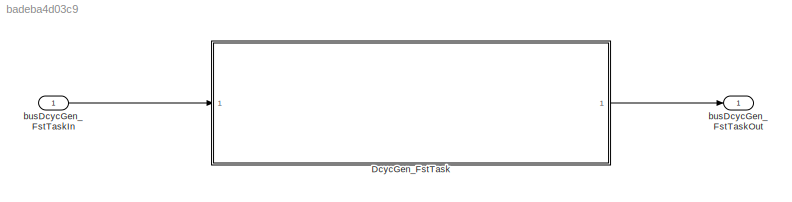
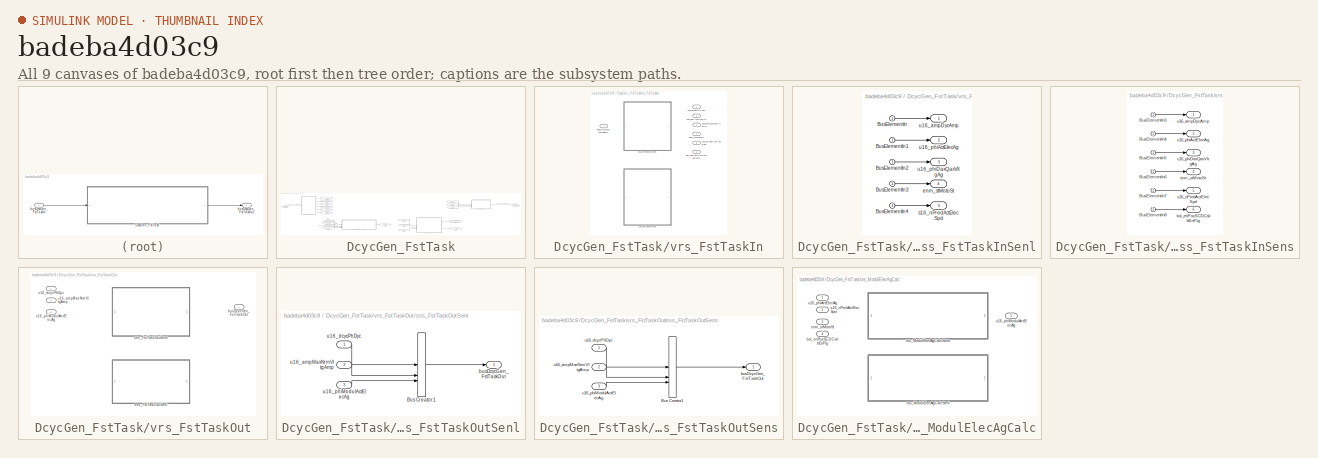
[diagram: thumbnail index - all 9 canvases of the model, root first then tree order]
MODEL slx_badeba4d03c9
KIND model
CONFIG AbsTol = auto
CONFIG EnableMultiTasking = on
CONFIG FixedStep = 0.0005
CONFIG MaxStep = auto
CONFIG MinStep = auto
CONFIG RelTol = 1e-3
CONFIG SampleTimeConstraint = Unconstrained
CONFIG SolverName = FixedStepAuto
CONFIG StartTime = 0.0
CONFIG StopTime = 5
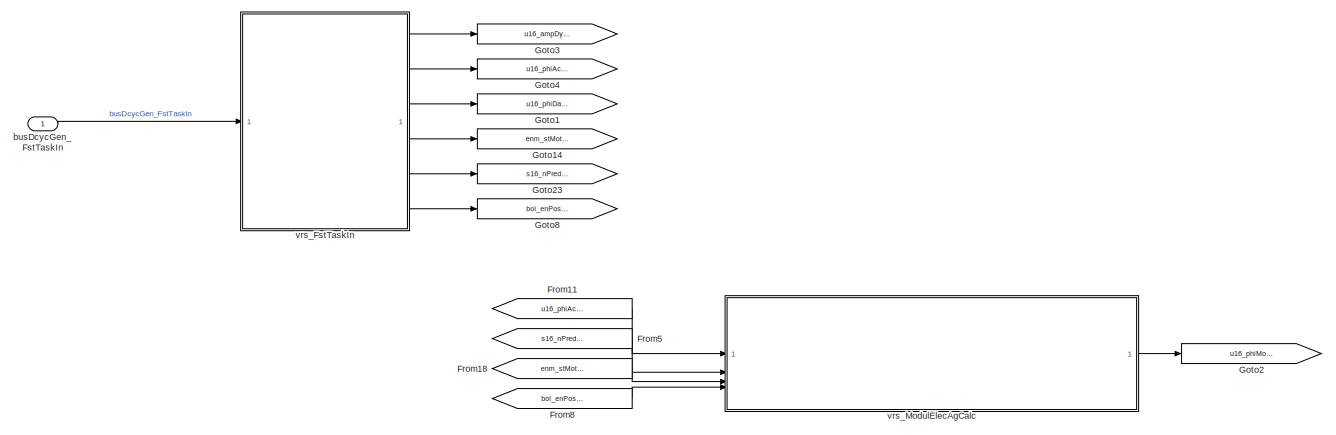
[diagram: DcycGen_FstTask - part 1/2, left side, full height]
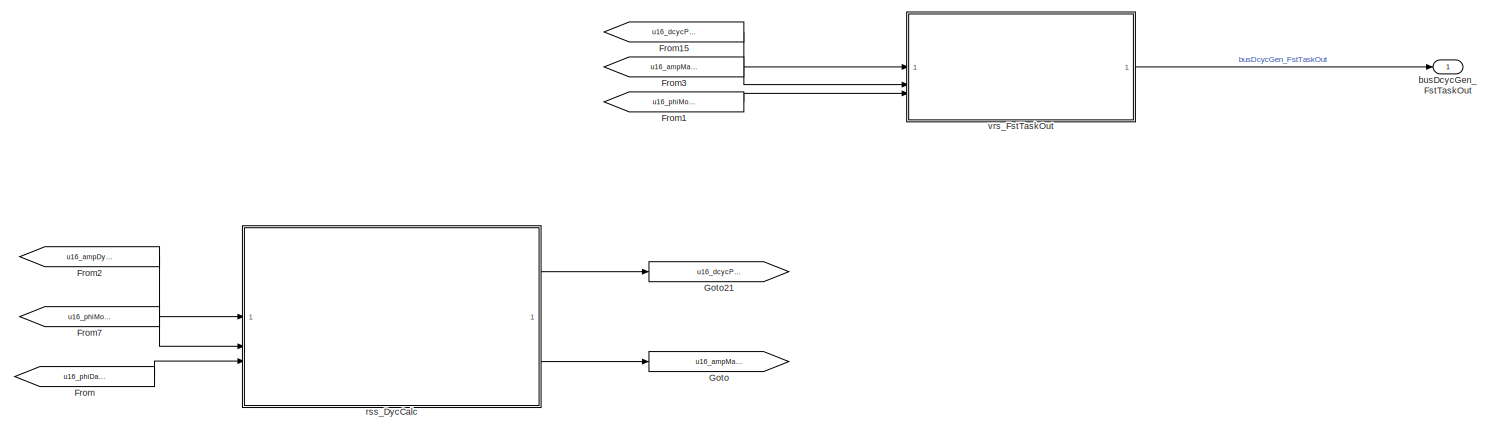
[diagram: DcycGen_FstTask - part 2/2, right side, full height]
BLOCK [SubSystem] DcycGen_FstTask
  RTWFcnName = DcycGen_FstTask
  RTWFcnNameOpts = User specified
  RTWSystemCode = Nonreusable function
  TreatAsAtomicUnit = on
BLOCK [From] DcycGen_FstTask/From
  GotoTag = u16_phiDaxQaxVltgAg
BLOCK [From] DcycGen_FstTask/From1
  GotoTag = u16_phiModulActElecAg
BLOCK [From] DcycGen_FstTask/From11
  GotoTag = u16_phiActElecAg
BLOCK [From] DcycGen_FstTask/From15
  GotoTag = u16_dcycPhDyc
BLOCK [From] DcycGen_FstTask/From18
  GotoTag = enm_stMotoSt
BLOCK [From] DcycGen_FstTask/From2
  GotoTag = u16_ampDycAmp
BLOCK [From] DcycGen_FstTask/From3
  GotoTag = u16_ampMaxNrmVltgAmp
BLOCK [From] DcycGen_FstTask/From5
  GotoTag = s16_nPredActElecSpd
BLOCK [From] DcycGen_FstTask/From7
  GotoTag = u16_phiModulActElecAg
BLOCK [From] DcycGen_FstTask/From8
  GotoTag = bol_enPosSCDCalibEnFlg
BLOCK [Goto] DcycGen_FstTask/Goto
  GotoTag = u16_ampMaxNrmVltgAmp
BLOCK [Goto] DcycGen_FstTask/Goto1
  GotoTag = u16_phiDaxQaxVltgAg
BLOCK [Goto] DcycGen_FstTask/Goto14
  GotoTag = enm_stMotoSt
BLOCK [Goto] DcycGen_FstTask/Goto2
  GotoTag = u16_phiModulActElecAg
BLOCK [Goto] DcycGen_FstTask/Goto21
  GotoTag = u16_dcycPhDyc
BLOCK [Goto] DcycGen_FstTask/Goto23
  GotoTag = s16_nPredActElecSpd
BLOCK [Goto] DcycGen_FstTask/Goto3
  GotoTag = u16_ampDycAmp
BLOCK [Goto] DcycGen_FstTask/Goto4
  GotoTag = u16_phiActElecAg
BLOCK [Goto] DcycGen_FstTask/Goto8
  GotoTag = bol_enPosSCDCalibEnFlg
BLOCK [Inport] DcycGen_FstTask/busDcycGen_FstTaskIn
BLOCK [Outport] DcycGen_FstTask/busDcycGen_FstTaskOut
  SamplingMode = Sample based
  SignalType = real
BLOCK [SubSystem] DcycGen_FstTask/rss_DycCalc
  ReferencedSubsystem = rss_DycCalc
BLOCK [SubSystem] DcycGen_FstTask/vrs_FstTaskIn
  LabelModeActiveChoice = cstSensCtrlLbl
  Variant = on
  VariantControl = Choice
  VariantControlMode = label
BLOCK [Outport] DcycGen_FstTask/vrs_FstTaskIn/bol_enPosSCDCalibEnFlg
  Port = 6
BLOCK [Inport] DcycGen_FstTask/vrs_FstTaskIn/busDcycGen_FstTaskIn
BLOCK [Outport] DcycGen_FstTask/vrs_FstTaskIn/enm_stMotoSt
  Port = 4
BLOCK [Outport] DcycGen_FstTask/vrs_FstTaskIn/s16_nPredActElecSpd
  Port = 5
BLOCK [SubSystem] DcycGen_FstTask/vrs_FstTaskIn/sss_FstTaskInSenl
  VariantControl = cstSenlCtrlLbl
BLOCK [Inport] DcycGen_FstTask/vrs_FstTaskIn/sss_FstTaskInSenl/BusElementIn
BLOCK [Inport] DcycGen_FstTask/vrs_FstTaskIn/sss_FstTaskInSenl/BusElementIn1
BLOCK [Inport] DcycGen_FstTask/vrs_FstTaskIn/sss_FstTaskInSenl/BusElementIn2
BLOCK [Inport] DcycGen_FstTask/vrs_FstTaskIn/sss_FstTaskInSenl/BusElementIn3
BLOCK [Inport] DcycGen_FstTask/vrs_FstTaskIn/sss_FstTaskInSenl/BusElementIn4
BLOCK [Outport] DcycGen_FstTask/vrs_FstTaskIn/sss_FstTaskInSenl/enm_stMotoSt
  Port = 4
BLOCK [Outport] DcycGen_FstTask/vrs_FstTaskIn/sss_FstTaskInSenl/s16_nPredActElecSpd
  Port = 5
BLOCK [Outport] DcycGen_FstTask/vrs_FstTaskIn/sss_FstTaskInSenl/u16_ampDycAmp
BLOCK [Outport] DcycGen_FstTask/vrs_FstTaskIn/sss_FstTaskInSenl/u16_phiActElecAg
  Port = 2
BLOCK [Outport] DcycGen_FstTask/vrs_FstTaskIn/sss_FstTaskInSenl/u16_phiDaxQaxVltgAg
  Port = 3
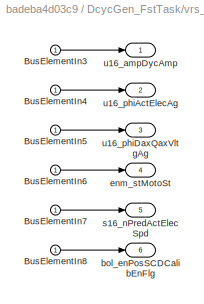
BLOCK [SubSystem] DcycGen_FstTask/vrs_FstTaskIn/sss_FstTaskInSens
  VariantControl = cstSensCtrlLbl
BLOCK [Inport] DcycGen_FstTask/vrs_FstTaskIn/sss_FstTaskInSens/BusElementIn3
BLOCK [Inport] DcycGen_FstTask/vrs_FstTaskIn/sss_FstTaskInSens/BusElementIn4
BLOCK [Inport] DcycGen_FstTask/vrs_FstTaskIn/sss_FstTaskInSens/BusElementIn5
BLOCK [Inport] DcycGen_FstTask/vrs_FstTaskIn/sss_FstTaskInSens/BusElementIn6
BLOCK [Inport] DcycGen_FstTask/vrs_FstTaskIn/sss_FstTaskInSens/BusElementIn7
BLOCK [Inport] DcycGen_FstTask/vrs_FstTaskIn/sss_FstTaskInSens/BusElementIn8
BLOCK [Outport] DcycGen_FstTask/vrs_FstTaskIn/sss_FstTaskInSens/bol_enPosSCDCalibEnFlg
  Port = 6
BLOCK [Outport] DcycGen_FstTask/vrs_FstTaskIn/sss_FstTaskInSens/enm_stMotoSt
  Port = 4
BLOCK [Outport] DcycGen_FstTask/vrs_FstTaskIn/sss_FstTaskInSens/s16_nPredActElecSpd
  Port = 5
BLOCK [Outport] DcycGen_FstTask/vrs_FstTaskIn/sss_FstTaskInSens/u16_ampDycAmp
BLOCK [Outport] DcycGen_FstTask/vrs_FstTaskIn/sss_FstTaskInSens/u16_phiActElecAg
  Port = 2
BLOCK [Outport] DcycGen_FstTask/vrs_FstTaskIn/sss_FstTaskInSens/u16_phiDaxQaxVltgAg
  Port = 3
BLOCK [Outport] DcycGen_FstTask/vrs_FstTaskIn/u16_ampDycAmp
BLOCK [Outport] DcycGen_FstTask/vrs_FstTaskIn/u16_phiActElecAg
  Port = 2
BLOCK [Outport] DcycGen_FstTask/vrs_FstTaskIn/u16_phiDaxQaxVltgAg
  Port = 3
BLOCK [SubSystem] DcycGen_FstTask/vrs_FstTaskOut
  LabelModeActiveChoice = cstSensCtrlLbl
  Variant = on
  VariantControl = Choice
  VariantControlMode = label
BLOCK [Outport] DcycGen_FstTask/vrs_FstTaskOut/busDcycGen_FstTaskOut
BLOCK [SubSystem] DcycGen_FstTask/vrs_FstTaskOut/sss_FstTaskOutSenl
  VariantControl = cstSenlCtrlLbl
BLOCK [BusCreator] DcycGen_FstTask/vrs_FstTaskOut/sss_FstTaskOutSenl/Bus Creator1
  DisplayOption = bar
  InheritFromInputs = off
  Inputs = 3
  NonVirtualBus = on
  OutDataTypeStr = Bus: BUS_DCYCGEN_FST_TASK_OUT
BLOCK [Outport] DcycGen_FstTask/vrs_FstTaskOut/sss_FstTaskOutSenl/busDcycGen_FstTaskOut
BLOCK [Inport] DcycGen_FstTask/vrs_FstTaskOut/sss_FstTaskOutSenl/u16_ampMaxNrmVltgAmp
  Port = 2
BLOCK [Inport] DcycGen_FstTask/vrs_FstTaskOut/sss_FstTaskOutSenl/u16_dcycPhDyc
BLOCK [Inport] DcycGen_FstTask/vrs_FstTaskOut/sss_FstTaskOutSenl/u16_phiModulActElecAg
  Port = 3
BLOCK [SubSystem] DcycGen_FstTask/vrs_FstTaskOut/sss_FstTaskOutSens
  VariantControl = cstSensCtrlLbl
BLOCK [BusCreator] DcycGen_FstTask/vrs_FstTaskOut/sss_FstTaskOutSens/Bus Creator1
  DisplayOption = bar
  InheritFromInputs = off
  Inputs = 3
  NonVirtualBus = on
  OutDataTypeStr = Bus: BUS_DCYCGEN_FST_TASK_OUT
BLOCK [Outport] DcycGen_FstTask/vrs_FstTaskOut/sss_FstTaskOutSens/busDcycGen_FstTaskOut
BLOCK [Inport] DcycGen_FstTask/vrs_FstTaskOut/sss_FstTaskOutSens/u16_ampMaxNrmVltgAmp
  Port = 2
BLOCK [Inport] DcycGen_FstTask/vrs_FstTaskOut/sss_FstTaskOutSens/u16_dcycPhDyc
BLOCK [Inport] DcycGen_FstTask/vrs_FstTaskOut/sss_FstTaskOutSens/u16_phiModulActElecAg
  Port = 3
BLOCK [Inport] DcycGen_FstTask/vrs_FstTaskOut/u16_ampMaxNrmVltgAmp
  Port = 2
BLOCK [Inport] DcycGen_FstTask/vrs_FstTaskOut/u16_dcycPhDyc
BLOCK [Inport] DcycGen_FstTask/vrs_FstTaskOut/u16_phiModulActElecAg
  Port = 3
BLOCK [SubSystem] DcycGen_FstTask/vrs_ModulElecAgCalc
  LabelModeActiveChoice = cstSensCtrlLbl
  Variant = on
  VariantControl = Choice
  VariantControlMode = label
BLOCK [Inport] DcycGen_FstTask/vrs_ModulElecAgCalc/bol_enPosSCDCalibEnFlg
  Port = 4
BLOCK [Inport] DcycGen_FstTask/vrs_ModulElecAgCalc/enm_stMotoSt
  Port = 3
BLOCK [SubSystem] DcycGen_FstTask/vrs_ModulElecAgCalc/rss_ModulElecAgCalcSenl
  ReferencedSubsystem = rss_ModulElecAgCalcSenl
  VariantControl = cstSenlCtrlLbl
BLOCK [SubSystem] DcycGen_FstTask/vrs_ModulElecAgCalc/rss_ModulElecAgCalcSens
  ReferencedSubsystem = rss_ModulElecAgCalcSens
  VariantControl = cstSensCtrlLbl
BLOCK [Inport] DcycGen_FstTask/vrs_ModulElecAgCalc/s16_nPredActElecSpd
  Port = 2
BLOCK [Inport] DcycGen_FstTask/vrs_ModulElecAgCalc/u16_phiActElecAg
BLOCK [Outport] DcycGen_FstTask/vrs_ModulElecAgCalc/u16_phiModulActElecAg
BLOCK [Inport] busDcycGen_FstTaskIn
  BusOutputAsStruct = on
  OutDataTypeStr = Bus: BUS_DCYCGEN_FST_TASK_IN
  SampleTime = round(double(Cdbl_tiFstTaskSmpTi),8)
BLOCK [Outport] busDcycGen_FstTaskOut
  OutDataTypeStr = Bus: BUS_DCYCGEN_FST_TASK_OUT
  SampleTime = round(double(Cdbl_tiFstTaskSmpTi),8)
  SamplingMode = Sample based
  SignalType = real
LINE DcycGen_FstTask/From11:1 -> DcycGen_FstTask/vrs_ModulElecAgCalc:1
LINE DcycGen_FstTask/From15:1 -> DcycGen_FstTask/vrs_FstTaskOut:1
LINE DcycGen_FstTask/From18:1 -> DcycGen_FstTask/vrs_ModulElecAgCalc:3
LINE DcycGen_FstTask/From1:1 -> DcycGen_FstTask/vrs_FstTaskOut:3
LINE DcycGen_FstTask/From2:1 -> DcycGen_FstTask/rss_DycCalc:1
LINE DcycGen_FstTask/From3:1 -> DcycGen_FstTask/vrs_FstTaskOut:2
LINE DcycGen_FstTask/From5:1 -> DcycGen_FstTask/vrs_ModulElecAgCalc:2
LINE DcycGen_FstTask/From7:1 -> DcycGen_FstTask/rss_DycCalc:2
LINE DcycGen_FstTask/From8:1 -> DcycGen_FstTask/vrs_ModulElecAgCalc:4
LINE DcycGen_FstTask/From:1 -> DcycGen_FstTask/rss_DycCalc:3
LINE DcycGen_FstTask/busDcycGen_FstTaskIn:1 -> DcycGen_FstTask/vrs_FstTaskIn:1
LINE DcycGen_FstTask/rss_DycCalc:1 -> DcycGen_FstTask/Goto21:1
LINE DcycGen_FstTask/rss_DycCalc:2 -> DcycGen_FstTask/Goto:1
LINE DcycGen_FstTask/vrs_FstTaskIn/sss_FstTaskInSenl/BusElementIn1:1 -> DcycGen_FstTask/vrs_FstTaskIn/sss_FstTaskInSenl/u16_phiActElecAg:1
LINE DcycGen_FstTask/vrs_FstTaskIn/sss_FstTaskInSenl/BusElementIn2:1 -> DcycGen_FstTask/vrs_FstTaskIn/sss_FstTaskInSenl/u16_phiDaxQaxVltgAg:1
LINE DcycGen_FstTask/vrs_FstTaskIn/sss_FstTaskInSenl/BusElementIn3:1 -> DcycGen_FstTask/vrs_FstTaskIn/sss_FstTaskInSenl/enm_stMotoSt:1
LINE DcycGen_FstTask/vrs_FstTaskIn/sss_FstTaskInSenl/BusElementIn4:1 -> DcycGen_FstTask/vrs_FstTaskIn/sss_FstTaskInSenl/s16_nPredActElecSpd:1
LINE DcycGen_FstTask/vrs_FstTaskIn/sss_FstTaskInSenl/BusElementIn:1 -> DcycGen_FstTask/vrs_FstTaskIn/sss_FstTaskInSenl/u16_ampDycAmp:1
LINE DcycGen_FstTask/vrs_FstTaskIn/sss_FstTaskInSens/BusElementIn3:1 -> DcycGen_FstTask/vrs_FstTaskIn/sss_FstTaskInSens/u16_ampDycAmp:1
LINE DcycGen_FstTask/vrs_FstTaskIn/sss_FstTaskInSens/BusElementIn4:1 -> DcycGen_FstTask/vrs_FstTaskIn/sss_FstTaskInSens/u16_phiActElecAg:1
LINE DcycGen_FstTask/vrs_FstTaskIn/sss_FstTaskInSens/BusElementIn5:1 -> DcycGen_FstTask/vrs_FstTaskIn/sss_FstTaskInSens/u16_phiDaxQaxVltgAg:1
LINE DcycGen_FstTask/vrs_FstTaskIn/sss_FstTaskInSens/BusElementIn6:1 -> DcycGen_FstTask/vrs_FstTaskIn/sss_FstTaskInSens/enm_stMotoSt:1
LINE DcycGen_FstTask/vrs_FstTaskIn/sss_FstTaskInSens/BusElementIn7:1 -> DcycGen_FstTask/vrs_FstTaskIn/sss_FstTaskInSens/s16_nPredActElecSpd:1
LINE DcycGen_FstTask/vrs_FstTaskIn/sss_FstTaskInSens/BusElementIn8:1 -> DcycGen_FstTask/vrs_FstTaskIn/sss_FstTaskInSens/bol_enPosSCDCalibEnFlg:1
LINE DcycGen_FstTask/vrs_FstTaskIn:1 -> DcycGen_FstTask/Goto3:1
LINE DcycGen_FstTask/vrs_FstTaskIn:2 -> DcycGen_FstTask/Goto4:1
LINE DcycGen_FstTask/vrs_FstTaskIn:3 -> DcycGen_FstTask/Goto1:1
LINE DcycGen_FstTask/vrs_FstTaskIn:4 -> DcycGen_FstTask/Goto14:1
LINE DcycGen_FstTask/vrs_FstTaskIn:5 -> DcycGen_FstTask/Goto23:1
LINE DcycGen_FstTask/vrs_FstTaskIn:6 -> DcycGen_FstTask/Goto8:1
LINE DcycGen_FstTask/vrs_FstTaskOut/sss_FstTaskOutSenl/Bus Creator1:1 -> DcycGen_FstTask/vrs_FstTaskOut/sss_FstTaskOutSenl/busDcycGen_FstTaskOut:1
LINE DcycGen_FstTask/vrs_FstTaskOut/sss_FstTaskOutSenl/u16_ampMaxNrmVltgAmp:1 -> DcycGen_FstTask/vrs_FstTaskOut/sss_FstTaskOutSenl/Bus Creator1:2
LINE DcycGen_FstTask/vrs_FstTaskOut/sss_FstTaskOutSenl/u16_dcycPhDyc:1 -> DcycGen_FstTask/vrs_FstTaskOut/sss_FstTaskOutSenl/Bus Creator1:1
LINE DcycGen_FstTask/vrs_FstTaskOut/sss_FstTaskOutSenl/u16_phiModulActElecAg:1 -> DcycGen_FstTask/vrs_FstTaskOut/sss_FstTaskOutSenl/Bus Creator1:3
LINE DcycGen_FstTask/vrs_FstTaskOut/sss_FstTaskOutSens/Bus Creator1:1 -> DcycGen_FstTask/vrs_FstTaskOut/sss_FstTaskOutSens/busDcycGen_FstTaskOut:1
LINE DcycGen_FstTask/vrs_FstTaskOut/sss_FstTaskOutSens/u16_ampMaxNrmVltgAmp:1 -> DcycGen_FstTask/vrs_FstTaskOut/sss_FstTaskOutSens/Bus Creator1:2
LINE DcycGen_FstTask/vrs_FstTaskOut/sss_FstTaskOutSens/u16_dcycPhDyc:1 -> DcycGen_FstTask/vrs_FstTaskOut/sss_FstTaskOutSens/Bus Creator1:1
LINE DcycGen_FstTask/vrs_FstTaskOut/sss_FstTaskOutSens/u16_phiModulActElecAg:1 -> DcycGen_FstTask/vrs_FstTaskOut/sss_FstTaskOutSens/Bus Creator1:3
LINE DcycGen_FstTask/vrs_FstTaskOut:1 -> DcycGen_FstTask/busDcycGen_FstTaskOut:1
LINE DcycGen_FstTask/vrs_ModulElecAgCalc:1 -> DcycGen_FstTask/Goto2:1
LINE DcycGen_FstTask:1 -> busDcycGen_FstTaskOut:1
LINE busDcycGen_FstTaskIn:1 -> DcycGen_FstTask:1
